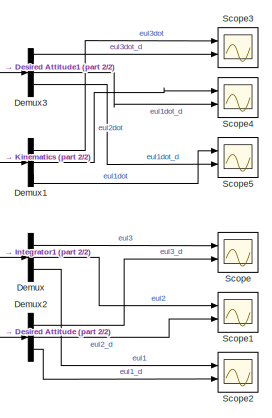
[diagram: root canvas - part 1/2, top right region]
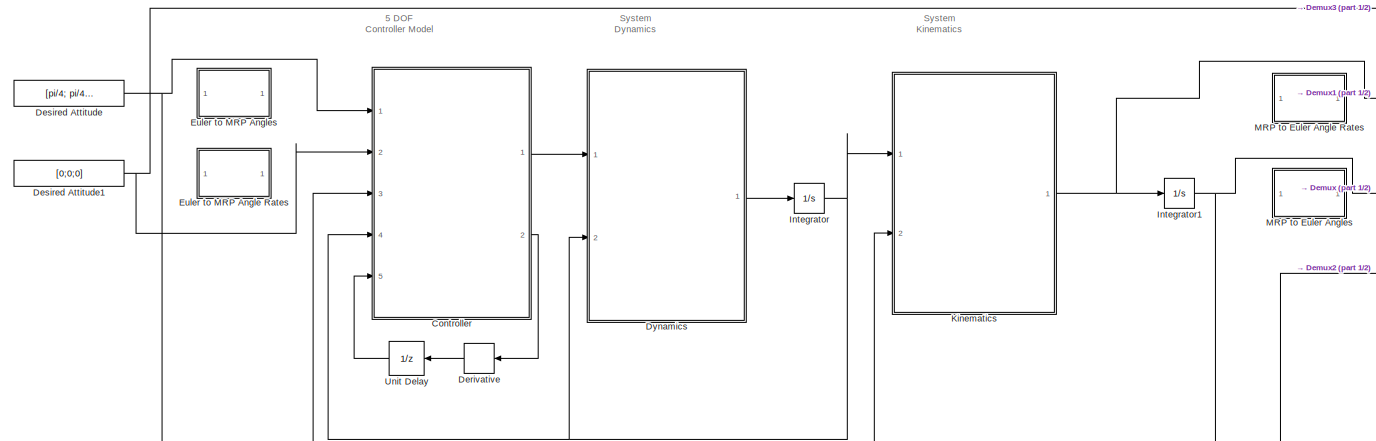
[diagram: root canvas - part 2/2, full width, middle band]
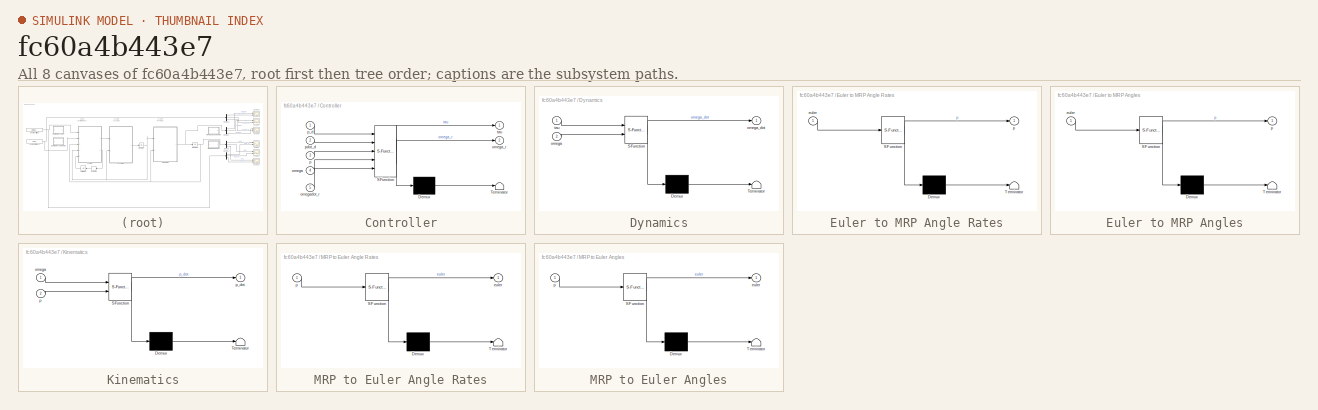
[diagram: thumbnail index - all 8 canvases of the model, root first then tree order]
MODEL slx_fc60a4b443e7
KIND model
CONFIG AbsTol = auto
CONFIG EnableMultiTasking = off
CONFIG FixedStep = 1/100
CONFIG MaxStep = auto
CONFIG MinStep = auto
CONFIG RelTol = 1e-3
CONFIG SampleTimeConstraint = Unconstrained
CONFIG Solver = FixedStepAuto
CONFIG SolverName = FixedStepAuto
CONFIG StartTime = 0.0
CONFIG StopTime = 20
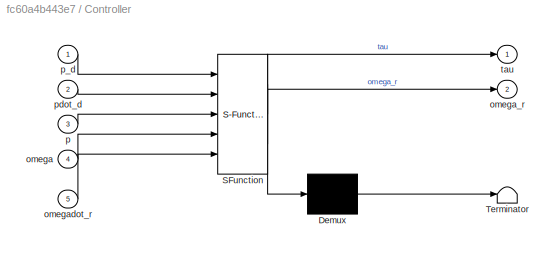
BLOCK [SubSystem] Controller
  ErrorFcn = Stateflow.Translate.translate
  PermitHierarchicalResolution = ExplicitOnly
  Ports = [5, 2]
  RequestExecContextInheritance = off
  SFBlockType = MATLAB Function
  TreatAsAtomicUnit = on
BLOCK [Demux] Controller/ Demux 
  Outputs = 1
  Ports = [1, 1]
BLOCK [S-Function] Controller/ SFunction 
  EnableBusSupport = on
  FunctionName = sf_sfun
  PortCounts = [5 3]
  Ports = [5, 3]
  SFcnIsStateOwnerBlock = off
  SFunctionDeploymentMode = off
  Tag = Stateflow S-Function controller_2018a 2
BLOCK [Terminator] Controller/ Terminator 
BLOCK [Inport] Controller/omega
  IconDisplay = Port number
  Port = 4
BLOCK [Outport] Controller/omega_r
  IconDisplay = Port number
  Port = 2
BLOCK [Inport] Controller/omegadot_r
  IconDisplay = Port number
  Port = 5
BLOCK [Inport] Controller/p
  IconDisplay = Port number
  Port = 3
BLOCK [Inport] Controller/p_d
  IconDisplay = Port number
BLOCK [Inport] Controller/pdot_d
  IconDisplay = Port number
  Port = 2
BLOCK [Outport] Controller/tau
  IconDisplay = Port number
BLOCK [Demux] Demux
  DisplayOption = bar
  Outputs = 3
  Ports = [1, 3]
BLOCK [Demux] Demux1
  DisplayOption = bar
  Outputs = 3
  Ports = [1, 3]
BLOCK [Demux] Demux2
  DisplayOption = bar
  Outputs = 3
  Ports = [1, 3]
BLOCK [Demux] Demux3
  DisplayOption = bar
  Outputs = 3
  Ports = [1, 3]
BLOCK [Derivative] Derivative
BLOCK [Constant] Desired Attitude
  Value = [pi/4; pi/4; pi/4]
BLOCK [Constant] Desired Attitude1
  Value = [0;0;0]
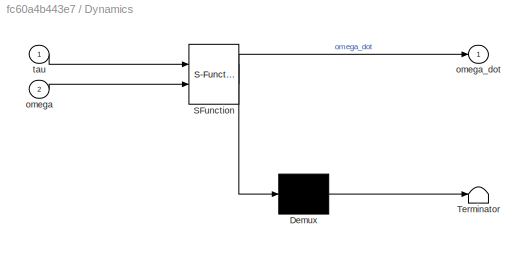
BLOCK [SubSystem] Dynamics
  ErrorFcn = Stateflow.Translate.translate
  PermitHierarchicalResolution = ExplicitOnly
  Ports = [2, 1]
  RequestExecContextInheritance = off
  SFBlockType = MATLAB Function
  TreatAsAtomicUnit = on
BLOCK [Demux] Dynamics/ Demux 
  Outputs = 1
  Ports = [1, 1]
BLOCK [S-Function] Dynamics/ SFunction 
  EnableBusSupport = on
  FunctionName = sf_sfun
  PortCounts = [2 2]
  Ports = [2, 2]
  SFcnIsStateOwnerBlock = off
  SFunctionDeploymentMode = off
  Tag = Stateflow S-Function controller_2018a 1
BLOCK [Terminator] Dynamics/ Terminator 
BLOCK [Inport] Dynamics/omega
  IconDisplay = Port number
  Port = 2
BLOCK [Outport] Dynamics/omega_dot
  IconDisplay = Port number
BLOCK [Inport] Dynamics/tau
  IconDisplay = Port number
BLOCK [SubSystem] Euler to MRP Angle Rates
  Commented = on
  ErrorFcn = Stateflow.Translate.translate
  PermitHierarchicalResolution = ExplicitOnly
  Ports = [1, 1]
  RequestExecContextInheritance = off
  SFBlockType = MATLAB Function
  TreatAsAtomicUnit = on
BLOCK [Demux] Euler to MRP Angle Rates/ Demux 
  Outputs = 1
  Ports = [1, 1]
BLOCK [S-Function] Euler to MRP Angle Rates/ SFunction 
  EnableBusSupport = on
  FunctionName = sf_sfun
  PortCounts = [1 2]
  Ports = [1, 2]
  SFcnIsStateOwnerBlock = off
  SFunctionDeploymentMode = off
  Tag = Stateflow S-Function controller_2018a 7
BLOCK [Terminator] Euler to MRP Angle Rates/ Terminator 
BLOCK [Inport] Euler to MRP Angle Rates/euler
  IconDisplay = Port number
BLOCK [Outport] Euler to MRP Angle Rates/p
  IconDisplay = Port number
BLOCK [SubSystem] Euler to MRP Angles
  Commented = on
  ErrorFcn = Stateflow.Translate.translate
  PermitHierarchicalResolution = ExplicitOnly
  Ports = [1, 1]
  RequestExecContextInheritance = off
  SFBlockType = MATLAB Function
  TreatAsAtomicUnit = on
BLOCK [Demux] Euler to MRP Angles/ Demux 
  Outputs = 1
  Ports = [1, 1]
BLOCK [S-Function] Euler to MRP Angles/ SFunction 
  EnableBusSupport = on
  FunctionName = sf_sfun
  PortCounts = [1 2]
  Ports = [1, 2]
  SFcnIsStateOwnerBlock = off
  SFunctionDeploymentMode = off
  Tag = Stateflow S-Function controller_2018a 5
BLOCK [Terminator] Euler to MRP Angles/ Terminator 
BLOCK [Inport] Euler to MRP Angles/euler
  IconDisplay = Port number
BLOCK [Outport] Euler to MRP Angles/p
  IconDisplay = Port number
BLOCK [Integrator] Integrator
  InitialCondition = [0;0;0]
  Ports = [1, 1]
BLOCK [Integrator] Integrator1
  InitialCondition = [0;0;0];
  Ports = [1, 1]
BLOCK [SubSystem] Kinematics
  ErrorFcn = Stateflow.Translate.translate
  PermitHierarchicalResolution = ExplicitOnly
  Ports = [2, 1]
  RequestExecContextInheritance = off
  SFBlockType = MATLAB Function
  TreatAsAtomicUnit = on
BLOCK [Demux] Kinematics/ Demux 
  Outputs = 1
  Ports = [1, 1]
BLOCK [S-Function] Kinematics/ SFunction 
  EnableBusSupport = on
  FunctionName = sf_sfun
  PortCounts = [2 2]
  Ports = [2, 2]
  SFcnIsStateOwnerBlock = off
  SFunctionDeploymentMode = off
  Tag = Stateflow S-Function controller_2018a 3
BLOCK [Terminator] Kinematics/ Terminator 
BLOCK [Inport] Kinematics/omega
  IconDisplay = Port number
BLOCK [Inport] Kinematics/p
  IconDisplay = Port number
  Port = 2
BLOCK [Outport] Kinematics/p_dot
  IconDisplay = Port number
BLOCK [SubSystem] MRP to Euler Angle Rates
  Commented = on
  ErrorFcn = Stateflow.Translate.translate
  PermitHierarchicalResolution = ExplicitOnly
  Ports = [1, 1]
  RequestExecContextInheritance = off
  SFBlockType = MATLAB Function
  TreatAsAtomicUnit = on
BLOCK [Demux] MRP to Euler Angle Rates/ Demux 
  Outputs = 1
  Ports = [1, 1]
BLOCK [S-Function] MRP to Euler Angle Rates/ SFunction 
  EnableBusSupport = on
  FunctionName = sf_sfun
  PortCounts = [1 2]
  Ports = [1, 2]
  SFcnIsStateOwnerBlock = off
  SFunctionDeploymentMode = off
  Tag = Stateflow S-Function controller_2018a 6
BLOCK [Terminator] MRP to Euler Angle Rates/ Terminator 
BLOCK [Outport] MRP to Euler Angle Rates/euler
  IconDisplay = Port number
BLOCK [Inport] MRP to Euler Angle Rates/p
  IconDisplay = Port number
BLOCK [SubSystem] MRP to Euler Angles
  Commented = on
  ErrorFcn = Stateflow.Translate.translate
  PermitHierarchicalResolution = ExplicitOnly
  Ports = [1, 1]
  RequestExecContextInheritance = off
  SFBlockType = MATLAB Function
  TreatAsAtomicUnit = on
BLOCK [Demux] MRP to Euler Angles/ Demux 
  Outputs = 1
  Ports = [1, 1]
BLOCK [S-Function] MRP to Euler Angles/ SFunction 
  EnableBusSupport = on
  FunctionName = sf_sfun
  PortCounts = [1 2]
  Ports = [1, 2]
  SFcnIsStateOwnerBlock = off
  SFunctionDeploymentMode = off
  Tag = Stateflow S-Function controller_2018a 4
BLOCK [Terminator] MRP to Euler Angles/ Terminator 
BLOCK [Outport] MRP to Euler Angles/euler
  IconDisplay = Port number
BLOCK [Inport] MRP to Euler Angles/p
  IconDisplay = Port number
BLOCK [Scope] Scope
  Floating = off
  NumInputPorts = 2
  Ports = [2]
  ScopeSpecificationString = Simulink.scopes.TimeScopeBlockCfg('CurrentConfiguration', extmgr.ConfigurationSet(extmgr.Configuration('Core','General UI',true),extmgr.Configuration('Core','Source UI',true),extmgr.Configuration('Sources','WiredSimulink',true),extmgr.Configuration('Visuals','Time Domain',true,'SerializedDisplays',{struct('MinYLimReal','-0.09817','MaxYLimReal','0.88357','YLabelReal','','MinYLimMag','0.00000','MaxY...<+1421ch>
BLOCK [Scope] Scope1
  Floating = off
  NumInputPorts = 2
  Ports = [2]
  ScopeSpecificationString = Simulink.scopes.TimeScopeBlockCfg('CurrentConfiguration', extmgr.ConfigurationSet(extmgr.Configuration('Core','General UI',true),extmgr.Configuration('Core','Source UI',true),extmgr.Configuration('Sources','WiredSimulink',true,'DataLoggingVariableName','ScopeData1'),extmgr.Configuration('Visuals','Time Domain',true,'SerializedDisplays',{struct('MinYLimReal','-0.09817','MaxYLimReal','0.88357','YLab...<+1460ch>
BLOCK [Scope] Scope2
  Floating = off
  NumInputPorts = 2
  Ports = [2]
  ScopeSpecificationString = Simulink.scopes.TimeScopeBlockCfg('CurrentConfiguration', extmgr.ConfigurationSet(extmgr.Configuration('Core','General UI',true),extmgr.Configuration('Core','Source UI',true),extmgr.Configuration('Sources','WiredSimulink',true,'DataLoggingVariableName','ScopeData2'),extmgr.Configuration('Visuals','Time Domain',true,'SerializedDisplays',{struct('MinYLimReal','-0.09817','MaxYLimReal','0.88357','YLab...<+1460ch>
BLOCK [Scope] Scope3
  Floating = off
  NumInputPorts = 2
  Ports = [2]
  ScopeSpecificationString = Simulink.scopes.TimeScopeBlockCfg('CurrentConfiguration', extmgr.ConfigurationSet(extmgr.Configuration('Core','General UI',true),extmgr.Configuration('Core','Source UI',true),extmgr.Configuration('Sources','WiredSimulink',true,'DataLoggingVariableName','ScopeData3'),extmgr.Configuration('Visuals','Time Domain',true,'SerializedDisplays',{struct('MinYLimReal','-0.03343','MaxYLimReal','0.30089','YLab...<+1431ch>
BLOCK [Scope] Scope4
  Floating = off
  NumInputPorts = 2
  Ports = [2]
  ScopeSpecificationString = Simulink.scopes.TimeScopeBlockCfg('CurrentConfiguration', extmgr.ConfigurationSet(extmgr.Configuration('Core','General UI',true),extmgr.Configuration('Core','Source UI',true),extmgr.Configuration('Sources','WiredSimulink',true,'DataLoggingVariableName','ScopeData4'),extmgr.Configuration('Visuals','Time Domain',true,'SerializedDisplays',{struct('MinYLimReal','-0.03343','MaxYLimReal','0.30089','YLab...<+1431ch>
BLOCK [Scope] Scope5
  Floating = off
  NumInputPorts = 2
  Ports = [2]
  ScopeSpecificationString = Simulink.scopes.TimeScopeBlockCfg('CurrentConfiguration', extmgr.ConfigurationSet(extmgr.Configuration('Core','General UI',true),extmgr.Configuration('Core','Source UI',true),extmgr.Configuration('Sources','WiredSimulink',true,'DataLoggingVariableName','ScopeData5'),extmgr.Configuration('Visuals','Time Domain',true,'SerializedDisplays',{struct('MinYLimReal','-0.03343','MaxYLimReal','0.30089','YLab...<+1430ch>
BLOCK [UnitDelay] Unit Delay
  InitialCondition = [0;0;0]
  InputProcessing = Elements as channels (sample based)
  SampleTime = -1
ANNOTATION (root): 5 DOF Controller Model
ANNOTATION (root): System Dynamics
ANNOTATION (root): System Kinematics
LINE Controller:1 -> Dynamics:1
LINE Controller:2 -> Derivative:1
LINE Demux1:1 -> Scope3:1
LINE Demux1:2 -> Scope4:1
LINE Demux1:3 -> Scope5:1
LINE Demux2:1 -> Scope:2
LINE Demux2:2 -> Scope1:2
LINE Demux2:3 -> Scope2:2
LINE Demux3:1 -> Scope3:2
LINE Demux3:2 -> Scope4:2
LINE Demux3:3 -> Scope5:2
LINE Demux:1 -> Scope:1
LINE Demux:2 -> Scope1:1
LINE Demux:3 -> Scope2:1
LINE Derivative:1 -> Unit Delay:1
NET Desired Attitude1:1 -> Controller:2, Demux3:1
NET Desired Attitude:1 -> Controller:1, Demux2:1
LINE Dynamics:1 -> Integrator:1
NET Integrator1:1 -> Controller:3, Demux:1, Kinematics:2
NET Integrator:1 -> Controller:4, Dynamics:2, Kinematics:1
NET Kinematics:1 -> Demux1:1, Integrator1:1
LINE Unit Delay:1 -> Controller:5
note: NET lines group one-source signal fan-out (src -> all destinations, sorted); 1:1 wires keep LINE
CHART Dynamics states=1 transitions=1
  STATE_LABEL 'eML_blk_kernel()'
  STATE_LABEL 'SCRIPT:\nfunction omega_dot = dynamics(tau, omega)\n\nS = @(p) [0, -p(3), p(2); p(3) 0 -p(1); -p(2) p(1) 0];\n\n% Model Parameters\nJ = eye(3); % Inertia matrix\nM_b = J; % Eqn (6), should just be J\nC_b = -S(J*omega); % Eqn (6), should just be -S(J*omega)\nH_b = zeros(3,1); % Eqn 8\n\nomega_dot = inv(M_b) * (tau - C_b*omega - H_b); % Eqn (5)'
CHART Controller states=1 transitions=1
  STATE_LABEL 'eML_blk_kernel()'
  STATE_LABEL "SCRIPT:\nfunction [tau, omega_r] = controller(p_d, pdot_d, p, omega, omegadot_r)\n\n% Controller Gains\nLambda = eye(3); % Controller Gain\nK_omega = eye(3); % Controller Gain\n\n% Eqn (2)\nI_3 = eye(3);\nS = @(p) [0, -p(3), p(2); p(3) 0 -p(1); -p(2) p(1) 0];\nZ = @(p) 1/2 * ( I_3*(1-p'*p)/2 + p*p' + S(p) );\n\n% Model Parameters\nJ = eye(3); % Inertia matrix\nM_b = J; % Eqn (6), should just be J\nC_b = -S(J*ome...<+342ch>"
CHART Kinematics states=1 transitions=1
  STATE_LABEL 'eML_blk_kernel()'
  STATE_LABEL "SCRIPT:\nfunction p_dot = kinematics(omega, p)\n\n% Eqn (2)\nI_3 = eye(3);\nS = @(p) [0, -p(3), p(2); p(3) 0 -p(1); -p(2) p(1) 0];\nZ = @(p) 1/2 * ( I_3*(1-p'*p)/2 + p*p' + S(p) );\n\np_dot = Z(p) * omega; % Eqn (2)"
CHART MRP to Euler
Angles states=1 transitions=1
  STATE_LABEL 'eML_blk_kernel()'
  STATE_LABEL "SCRIPT:\nfunction euler = mrp2euler(p)\n\neuler = ConvertAttitude(p, 'mrp', '321');"
CHART Euler to MRP
Angles states=1 transitions=1
  STATE_LABEL 'eML_blk_kernel()'
  STATE_LABEL "SCRIPT:\nfunction p = euler2mrp(euler)\n\np = ConvertAttitude(euler, '321', 'mrp');"
CHART MRP to Euler
Angle Rates states=1 transitions=1
  STATE_LABEL 'eML_blk_kernel()'
  STATE_LABEL "SCRIPT:\nfunction euler = mrp2euler(p)\n\neuler = ConvertAttitude(p, 'mrp', '321');"
CHART Euler to MRP
Angle Rates states=1 transitions=1
  STATE_LABEL 'eML_blk_kernel()'
  STATE_LABEL "SCRIPT:\nfunction p = euler2mrp(euler)\n\np = ConvertAttitude(euler, '321', 'mrp');"
